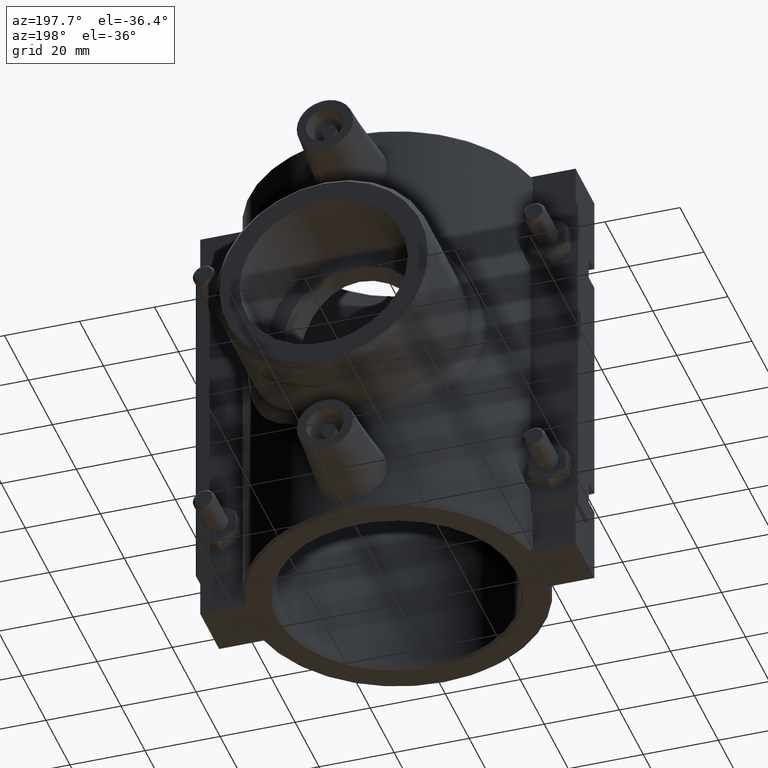
[diagram: clean part render]
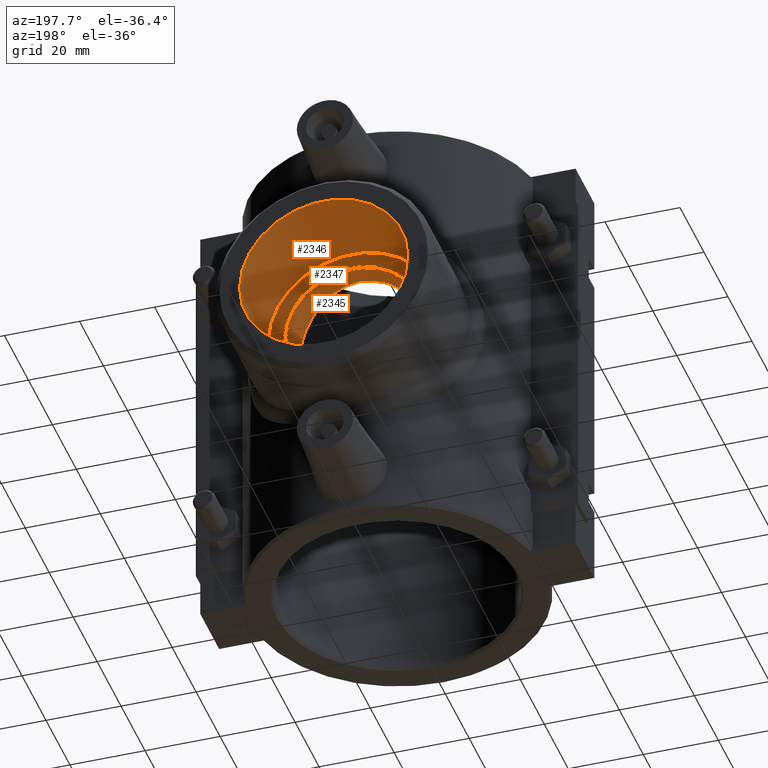
[diagram: same view with one multi-face feature highlighted, each face labeled with its STEP entity id]
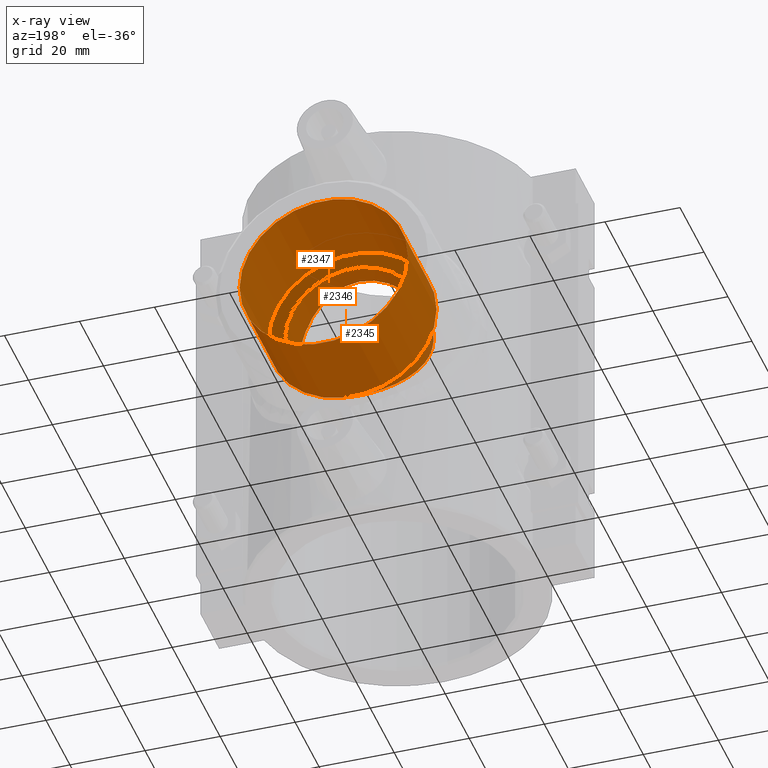
[diagram: x-ray of the same camera — body ghosted, the whole feature saturated]
A machine part, auxiliary view. The highlighted faces form ONE feature: a stepped (counterbored) hole: 2 coaxial cylindrical walls of radii 17.938 -> 22.4225 mm joined by 1 annular planar shoulder face(s). The faces share edges in the B-rep.
The next image is the same camera in x-ray: the body ghosted and the whole hole feature saturated, so the bore chain is visible through the body.
Their STEP definitions:
[1] entity #2346 (Cylinder):
#78=CYLINDRICAL_SURFACE('',#2548,22.4225);
#131=FACE_BOUND('',#465,.T.);
#282=FACE_OUTER_BOUND('',#464,.T.);
#464=EDGE_LOOP('',(#2004));
#465=EDGE_LOOP('',(#2005));
#949=CIRCLE('',#2538,22.4225);
#954=CIRCLE('',#2549,22.4225);
#1154=VERTEX_POINT('',#4308);
#1164=VERTEX_POINT('',#4411);
#1450=EDGE_CURVE('',#1154,#1154,#949,.T.);
#1460=EDGE_CURVE('',#1164,#1164,#954,.T.);
#2004=ORIENTED_EDGE('',*,*,#1460,.T.);
#2005=ORIENTED_EDGE('',*,*,#1450,.F.);
#2346=ADVANCED_FACE('',(#282,#131),#78,.F.);
#2538=AXIS2_PLACEMENT_3D('',#4309,#3068,#3069);
#2548=AXIS2_PLACEMENT_3D('',#4410,#3088,#3089);
#2549=AXIS2_PLACEMENT_3D('',#4412,#3090,#3091);
#3068=DIRECTION('center_axis',(0.,-1.,0.));
#3069=DIRECTION('ref_axis',(-1.,0.,0.));
#3088=DIRECTION('center_axis',(0.,-1.,0.));
#3089=DIRECTION('ref_axis',(-1.,0.,0.));
#3090=DIRECTION('center_axis',(0.,-1.,0.));
#3091=DIRECTION('ref_axis',(-1.,0.,0.));
#4308=CARTESIAN_POINT('',(22.4225,61.5,-2.74596428538815E-15));
#4309=CARTESIAN_POINT('Origin',(0.,61.5,0.));
#4410=CARTESIAN_POINT('Origin',(0.,61.5,0.));
#4411=CARTESIAN_POINT('',(22.4225,37.5,-2.74596428538815E-15));
#4412=CARTESIAN_POINT('Origin',(0.,37.5,0.));
[2] entity #2345 (Cylinder):
#77=CYLINDRICAL_SURFACE('',#2546,17.938);
#130=FACE_BOUND('',#463,.T.);
#162=B_SPLINE_CURVE_WITH_KNOTS('',3,(#4167,#4168,#4169,#4170,#4171,#4172,
#4173,#4174,#4175,#4176,#4177,#4178,#4179,#4180,#4181,#4182,#4183,#4184,
#4185,#4186,#4187,#4188,#4189,#4190,#4191,#4192,#4193,#4194,#4195,#4196,
#4197,#4198,#4199,#4200,#4201,#4202,#4203,#4204,#4205,#4206,#4207,#4208,
#4209,#4210,#4211,#4212,#4213,#4214,#4215,#4216,#4217,#4218,#4219,#4220,
#4221,#4222,#4223,#4224),.UNSPECIFIED.,.T.,.F.,(4,2,2,2,2,2,2,2,2,2,2,2,
2,2,2,2,2,2,2,2,2,2,2,2,2,2,2,2,4),(0.,0.348121234413087,0.696242468826175,
1.39248493765235,1.73886295701635,2.08524097638034,2.43161899574434,2.77799701510833,
3.12437503447233,3.47075305383633,3.81713107320032,4.16350909256432,4.85975156139049,
5.20787279580358,5.55599403021667,5.90411526462976,6.25223649904284,6.94847896786902,
7.29485698723301,7.64123500659701,7.98761302596101,8.333991045325,8.680369064689,
9.02674708405299,9.37312510341699,9.71950312278098,10.4157455916072,10.7638668260202,
11.1119880604333),.UNSPECIFIED.);
#281=FACE_OUTER_BOUND('',#462,.T.);
#462=EDGE_LOOP('',(#2002));
#463=EDGE_LOOP('',(#2003));
#953=CIRCLE('',#2547,17.938);
#1132=VERTEX_POINT('',#4166);
#1163=VERTEX_POINT('',#4408);
#1417=EDGE_CURVE('',#1132,#1132,#162,.T.);
#1459=EDGE_CURVE('',#1163,#1163,#953,.T.);
#2002=ORIENTED_EDGE('',*,*,#1417,.F.);
#2003=ORIENTED_EDGE('',*,*,#1459,.F.);
#2345=ADVANCED_FACE('',(#281,#130),#77,.F.);
#2546=AXIS2_PLACEMENT_3D('',#4407,#3084,#3085);
#2547=AXIS2_PLACEMENT_3D('',#4409,#3086,#3087);
#3084=DIRECTION('center_axis',(0.,-1.,0.));
#3085=DIRECTION('ref_axis',(-1.,0.,0.));
#3086=DIRECTION('center_axis',(0.,-1.,0.));
#3087=DIRECTION('ref_axis',(-1.,0.,0.));
#4166=CARTESIAN_POINT('',(17.938,25.8935929526978,-5.55111512312578E-16));
#4167=CARTESIAN_POINT('Ctrl Pts',(17.938,25.8935929526978,-5.55111512312578E-16));
#4168=CARTESIAN_POINT('Ctrl Pts',(17.938,25.8935929526978,-1.16040411471029));
#4169=CARTESIAN_POINT('Ctrl Pts',(17.8236880732858,25.973943769522,-2.34783299111084));
#4170=CARTESIAN_POINT('Ctrl Pts',(17.3555532953441,26.2890543910091,-4.68838422609321));
#4171=CARTESIAN_POINT('Ctrl Pts',(17.0019588302106,26.5231379221071,-5.84164325521904));
#4172=CARTESIAN_POINT('Ctrl Pts',(15.6190016310646,27.3764565204625,-9.1376759311442));
#4173=CARTESIAN_POINT('Ctrl Pts',(14.2510793441339,28.14404743345,-11.1170835377147));
#4174=CARTESIAN_POINT('Ctrl Pts',(11.9045058557458,29.1763275302416,-13.4636570261028));
#4175=CARTESIAN_POINT('Ctrl Pts',(11.0220223753957,29.5263174966863,-14.20024194581));
#4176=CARTESIAN_POINT('Ctrl Pts',(9.09063050489276,30.1769587460546,-15.5078136976855));
#4177=CARTESIAN_POINT('Ctrl Pts',(8.04163689402143,30.4771620152731,-16.0788975396325));
#4178=CARTESIAN_POINT('Ctrl Pts',(5.83852627119389,30.9747791298771,-17.003249405616));
#4179=CARTESIAN_POINT('Ctrl Pts',(4.6822121939968,31.1723485075764,-17.3572617175669));
#4180=CARTESIAN_POINT('Ctrl Pts',(2.3402718015091,31.4350369875301,-17.8247236518358));
#4181=CARTESIAN_POINT('Ctrl Pts',(1.15459339787999,31.5,-17.938));
#4182=CARTESIAN_POINT('Ctrl Pts',(-1.15459339787999,31.5,-17.938));
#4183=CARTESIAN_POINT('Ctrl Pts',(-2.3402718015091,31.4350369875301,-17.8247236518358));
#4184=CARTESIAN_POINT('Ctrl Pts',(-4.6822121939968,31.1723485075764,-17.3572617175669));
#4185=CARTESIAN_POINT('Ctrl Pts',(-5.83852627119389,30.9747791298771,-17.003249405616));
#4186=CARTESIAN_POINT('Ctrl Pts',(-8.04163689402143,30.4771620152731,-16.0788975396325));
#4187=CARTESIAN_POINT('Ctrl Pts',(-9.09063050489277,30.1769587460545,-15.5078136976855));
#4188=CARTESIAN_POINT('Ctrl Pts',(-11.0220223753957,29.5263174966863,-14.20024194581));
#4189=CARTESIAN_POINT('Ctrl Pts',(-11.9045058557458,29.1763275302416,-13.4636570261028));
#4190=CARTESIAN_POINT('Ctrl Pts',(-14.2510793441339,28.14404743345,-11.1170835377147));
#4191=CARTESIAN_POINT('Ctrl Pts',(-15.6190016310646,27.3764565204625,-9.1376759311442));
#4192=CARTESIAN_POINT('Ctrl Pts',(-17.0019588302106,26.5231379221071,-5.84164325521904));
#4193=CARTESIAN_POINT('Ctrl Pts',(-17.3555532953441,26.2890543910091,-4.68838422609322));
#4194=CARTESIAN_POINT('Ctrl Pts',(-17.8236880732858,25.973943769522,-2.34783299111085));
#4195=CARTESIAN_POINT('Ctrl Pts',(-17.938,25.8935929526978,-1.16040411471029));
#4196=CARTESIAN_POINT('Ctrl Pts',(-17.938,25.8935929526978,1.16040411471029));
#4197=CARTESIAN_POINT('Ctrl Pts',(-17.8236880732858,25.973943769522,2.34783299111085));
#4198=CARTESIAN_POINT('Ctrl Pts',(-17.3555532953441,26.2890543910091,4.68838422609322));
#4199=CARTESIAN_POINT('Ctrl Pts',(-17.0019588302106,26.5231379221071,5.84164325521904));
#4200=CARTESIAN_POINT('Ctrl Pts',(-15.6190016310646,27.3764565204625,9.1376759311442));
#4201=CARTESIAN_POINT('Ctrl Pts',(-14.2510793441339,28.14404743345,11.1170835377147));
#4202=CARTESIAN_POINT('Ctrl Pts',(-11.9045058557458,29.1763275302416,13.4636570261028));
#4203=CARTESIAN_POINT('Ctrl Pts',(-11.0220223753957,29.5263174966863,14.20024194581));
#4204=CARTESIAN_POINT('Ctrl Pts',(-9.09063050489277,30.1769587460545,15.5078136976855));
#4205=CARTESIAN_POINT('Ctrl Pts',(-8.04163689402143,30.4771620152731,16.0788975396325));
#4206=CARTESIAN_POINT('Ctrl Pts',(-5.83852627119389,30.9747791298771,17.003249405616));
#4207=CARTESIAN_POINT('Ctrl Pts',(-4.6822121939968,31.1723485075764,17.3572617175669));
#4208=CARTESIAN_POINT('Ctrl Pts',(-2.3402718015091,31.4350369875301,17.8247236518358));
#4209=CARTESIAN_POINT('Ctrl Pts',(-1.15459339787999,31.5,17.938));
#4210=CARTESIAN_POINT('Ctrl Pts',(1.15459339787998,31.5,17.938));
#4211=CARTESIAN_POINT('Ctrl Pts',(2.34027180150909,31.4350369875301,17.8247236518358));
#4212=CARTESIAN_POINT('Ctrl Pts',(4.68221219399678,31.1723485075764,17.3572617175669));
#4213=CARTESIAN_POINT('Ctrl Pts',(5.83852627119388,30.9747791298771,17.003249405616));
#4214=CARTESIAN_POINT('Ctrl Pts',(8.04163689402142,30.4771620152731,16.0788975396325));
#4215=CARTESIAN_POINT('Ctrl Pts',(9.09063050489276,30.1769587460545,15.5078136976855));
#4216=CARTESIAN_POINT('Ctrl Pts',(11.0220223753957,29.5263174966863,14.20024194581));
#4217=CARTESIAN_POINT('Ctrl Pts',(11.9045058557458,29.1763275302416,13.4636570261028));
#4218=CARTESIAN_POINT('Ctrl Pts',(14.2510793441339,28.14404743345,11.1170835377147));
#4219=CARTESIAN_POINT('Ctrl Pts',(15.6190016310646,27.3764565204625,9.13767593114421));
#4220=CARTESIAN_POINT('Ctrl Pts',(17.0019588302106,26.5231379221071,5.84164325521904));
#4221=CARTESIAN_POINT('Ctrl Pts',(17.3555532953441,26.2890543910091,4.68838422609321));
#4222=CARTESIAN_POINT('Ctrl Pts',(17.8236880732858,25.973943769522,2.34783299111084));
#4223=CARTESIAN_POINT('Ctrl Pts',(17.938,25.8935929526978,1.16040411471029));
#4224=CARTESIAN_POINT('Ctrl Pts',(17.938,25.8935929526978,5.55111512312578E-16));
#4407=CARTESIAN_POINT('Origin',(0.,37.5,0.));
#4408=CARTESIAN_POINT('',(17.938,37.5,-2.19677142831052E-15));
#4409=CARTESIAN_POINT('Origin',(0.,37.5,0.));
[3] entity #2347 (Plane):
#132=FACE_BOUND('',#467,.T.);
#283=FACE_OUTER_BOUND('',#466,.T.);
#466=EDGE_LOOP('',(#2006));
#467=EDGE_LOOP('',(#2007));
#953=CIRCLE('',#2547,17.938);
#954=CIRCLE('',#2549,22.4225);
#1163=VERTEX_POINT('',#4408);
#1164=VERTEX_POINT('',#4411);
#1459=EDGE_CURVE('',#1163,#1163,#953,.T.);
#1460=EDGE_CURVE('',#1164,#1164,#954,.T.);
#2006=ORIENTED_EDGE('',*,*,#1460,.F.);
#2007=ORIENTED_EDGE('',*,*,#1459,.T.);
#2222=PLANE('',#2550);
#2347=ADVANCED_FACE('',(#283,#132),#2222,.T.);
#2547=AXIS2_PLACEMENT_3D('',#4409,#3086,#3087);
#2549=AXIS2_PLACEMENT_3D('',#4412,#3090,#3091);
#2550=AXIS2_PLACEMENT_3D('',#4413,#3092,#3093);
#3086=DIRECTION('center_axis',(0.,-1.,0.));
#3087=DIRECTION('ref_axis',(-1.,0.,0.));
#3090=DIRECTION('center_axis',(0.,-1.,0.));
#3091=DIRECTION('ref_axis',(-1.,0.,0.));
#3092=DIRECTION('center_axis',(0.,1.,0.));
#3093=DIRECTION('ref_axis',(0.,0.,1.));
#4408=CARTESIAN_POINT('',(17.938,37.5,-2.19677142831052E-15));
#4409=CARTESIAN_POINT('Origin',(0.,37.5,0.));
#4411=CARTESIAN_POINT('',(22.4225,37.5,-2.74596428538815E-15));
#4412=CARTESIAN_POINT('Origin',(0.,37.5,0.));
#4413=CARTESIAN_POINT('Origin',(-8.89014264426138E-16,37.5,-3.30091953655229E-16));